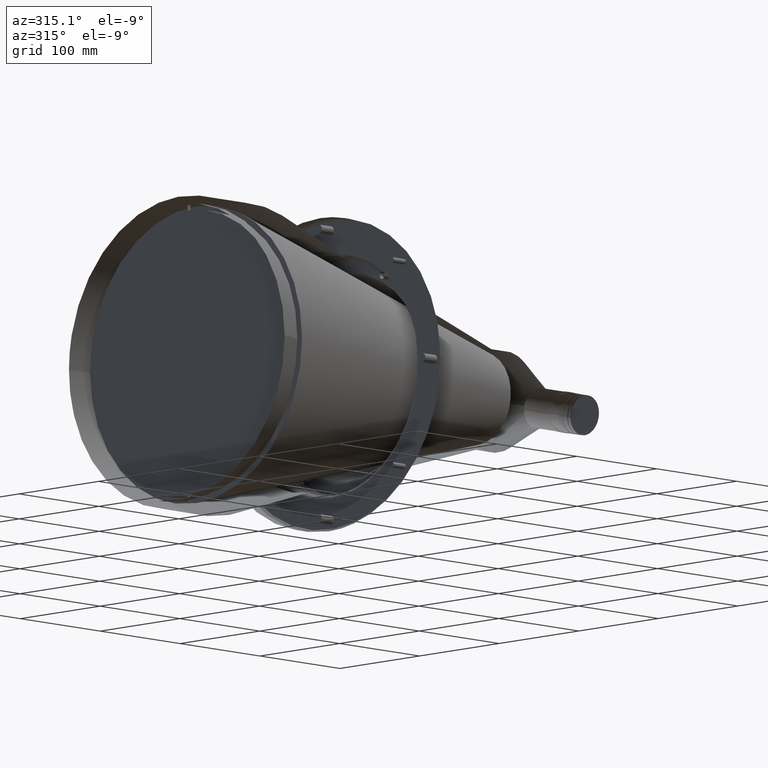
[diagram: clean part render]
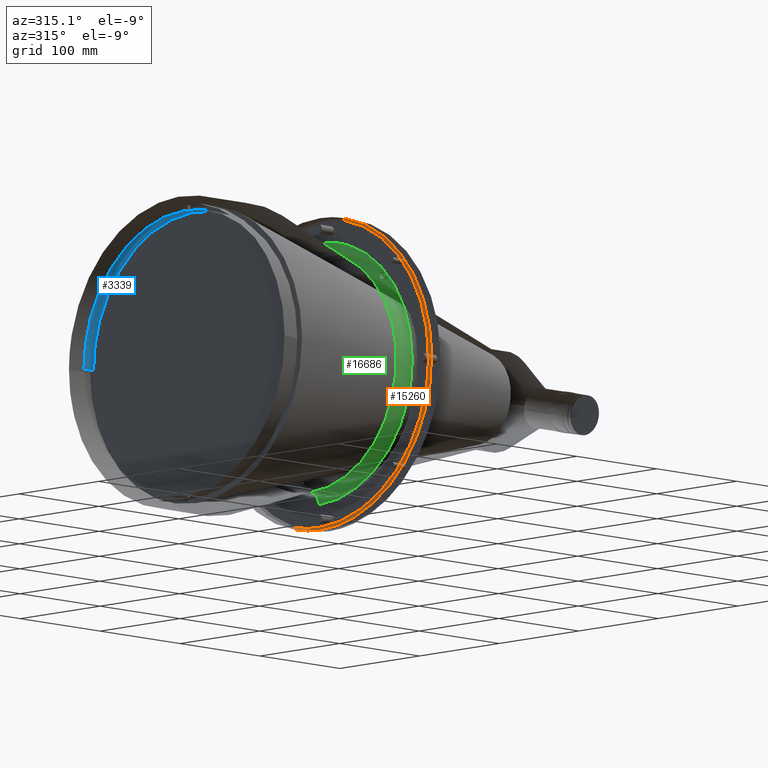
[diagram: same view with three faces highlighted in distinct colors, each labeled with its STEP entity id]
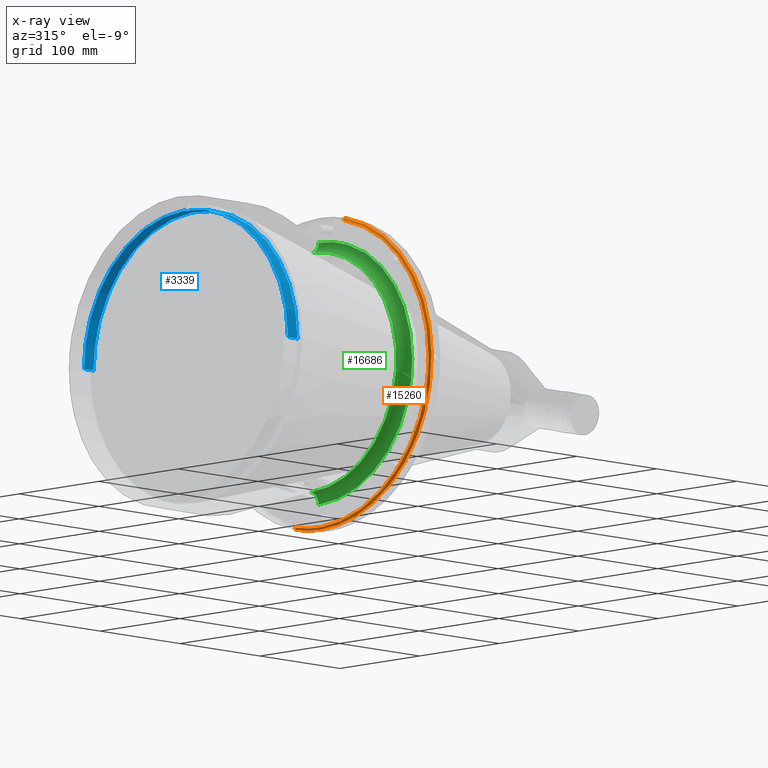
[diagram: x-ray of the same camera — body ghosted, the three highlighted faces saturated]
A machine part, auxiliary view with three faces highlighted in distinct colors.
The next image is the same camera in x-ray (body ghosted, the three faces saturated) — at least one of them is partly hidden behind the body in this view.
Their STEP definitions:

[orange] entity #15260 — the highlighted conical surface has half-angle 45 deg.
#155 = DIRECTION ( 'NONE',  ( 0.7071067811865523467, -0.1552185617239015825, 0.6898602743283284155 ) ) ;
#574 = CARTESIAN_POINT ( 'NONE',  ( 176.9999999985773798, -105.5422824017505263, -92.37626350147742471 ) ) ;
#933 = CARTESIAN_POINT ( 'NONE',  ( 175.1999999999983402, -30.33658536586020560, 134.8292682926823147 ) ) ;
#1077 = CARTESIAN_POINT ( 'NONE',  ( 175.0000000000000000, -34.68578998581706685, 133.5890414530865655 ) ) ;
#1342 = CARTESIAN_POINT ( 'NONE',  ( 175.0000000000000284, -86.72695967427758035, 107.3665313668431622 ) ) ;
#1405 = CARTESIAN_POINT ( 'NONE',  ( 175.0000000000000000, -118.9300396967695121, -70.03384558855223929 ) ) ;
#1555 = ORIENTED_EDGE ( 'NONE', *, *, #21002, .T. ) ;
#1678 = CARTESIAN_POINT ( 'NONE',  ( 175.0000000000000568, -135.1531434675157186, 27.97716443051283264 ) ) ;
#1935 = CARTESIAN_POINT ( 'NONE',  ( 175.0000000000000284, -124.2545224643027808, -60.08271832668319234 ) ) ;
#2198 = CARTESIAN_POINT ( 'NONE',  ( 174.9999999999999716, -137.7956535278856620, 7.841780594234208479 ) ) ;
#2467 = CARTESIAN_POINT ( 'NONE',  ( 174.9999999999999716, -129.5852662489556621, 47.50570839581069293 ) ) ;
#2736 = VERTEX_POINT ( 'NONE', #27915 ) ;
#2739 = CARTESIAN_POINT ( 'NONE',  ( 175.0000000000000284, 7.957994982361006109, -137.7889962146408607 ) ) ;
#3004 = CARTESIAN_POINT ( 'NONE',  ( 174.9999999999999716, -14.59563984394903180, -137.2445585510951105 ) ) ;
#3262 = CARTESIAN_POINT ( 'NONE',  ( 175.0000000000000284, -66.02752586423082448, -121.2632401934216517 ) ) ;
#3804 = CARTESIAN_POINT ( 'NONE',  ( 176.9999999985772945, -140.0843209595759618, -6.995030690366399462 ) ) ;
#5356 = CARTESIAN_POINT ( 'NONE',  ( 175.0000000000000000, -98.42878160586646175, 96.75180227747888750 ) ) ;
#5418 = CARTESIAN_POINT ( 'NONE',  ( 175.0000000000000284, -132.4365249841377761, -39.05123869896025468 ) ) ;
#5689 = CARTESIAN_POINT ( 'NONE',  ( 175.0000000000000000, -130.3448617685398858, 45.37988935237414267 ) ) ;
#5959 = CARTESIAN_POINT ( 'NONE',  ( 175.0000000000000000, -91.80414329581496702, -103.0586879678365619 ) ) ;
#6222 = CARTESIAN_POINT ( 'NONE',  ( 175.0000000000000284, -136.6776320124846791, -19.19242958946788491 ) ) ;
#6487 = CARTESIAN_POINT ( 'NONE',  ( 175.0000000000000284, -115.3501060304176207, -75.78582173944924705 ) ) ;
#6759 = CARTESIAN_POINT ( 'NONE',  ( 175.0000000002444835, 30.29268292693119946, -134.6341463419551872 ) ) ;
#6774 = CARTESIAN_POINT ( 'NONE',  ( 176.9999999978813605, -30.73170731692567159, 136.5853658529730410 ) ) ;
#7024 = CARTESIAN_POINT ( 'NONE',  ( 175.0000000000000568, -69.96650317599696223, -119.0340008574612369 ) ) ;
#7296 = CARTESIAN_POINT ( 'NONE',  ( 175.0000000000000284, -21.31007127201104367, -136.3635478540250006 ) ) ;
#7834 = CARTESIAN_POINT ( 'NONE',  ( 176.9999999985784598, -133.3514522763482262, 43.47341266628139067 ) ) ;
#8099 = CARTESIAN_POINT ( 'NONE',  ( 176.9999999985770955, -120.5560335867597388, -71.68535553997951126 ) ) ;
#8344 = CARTESIAN_POINT ( 'NONE',  ( 174.9999999999999432, -91.88938038546554310, 102.9827125170846216 ) ) ;
#8358 = CARTESIAN_POINT ( 'NONE',  ( 176.9999999985791135, -42.02117620374895779, -133.8161731014541260 ) ) ;
#9453 = CARTESIAN_POINT ( 'NONE',  ( 175.0000000000000000, -135.1300519639137860, -28.08854025644114927 ) ) ;
#9716 = CARTESIAN_POINT ( 'NONE',  ( 175.0000000000000000, -110.1453480196210677, -83.16913768292997133 ) ) ;
#9980 = CARTESIAN_POINT ( 'NONE',  ( 174.9999999999999716, -133.6178032215945279, 34.57484071799687797 ) ) ;
#10080 = DIRECTION ( 'NONE',  ( 1.000000000000000000, -4.717467733218110387E-14, 1.755472366373550087E-15 ) ) ;
#10256 = CARTESIAN_POINT ( 'NONE',  ( 175.0000000000000000, -83.07709152932579855, -110.2148604793703726 ) ) ;
#10291 = ORIENTED_EDGE ( 'NONE', *, *, #10937, .F. ) ;
#10363 = CARTESIAN_POINT ( 'NONE',  ( 176.9999999978786605, -4.100602912047750896E-14, -139.9999999992985806 ) ) ;
#10516 = CARTESIAN_POINT ( 'NONE',  ( 174.9999999999999432, -110.2145197334859006, 83.07750376679751980 ) ) ;
#10784 = CARTESIAN_POINT ( 'NONE',  ( 175.0000000000000284, -57.93706517368222109, -125.2693578877478728 ) ) ;
#10929 = AXIS2_PLACEMENT_3D ( 'NONE', #34239, #10080, #22394 ) ;
#10937 = EDGE_CURVE ( 'NONE', #13481, #27278, #24367, .T. ) ;
#10964 = VECTOR ( 'NONE', #155, 1000.000000000000114 ) ;
#11311 = CARTESIAN_POINT ( 'NONE',  ( 175.0000000000000000, 12.45990211936464220, -137.4549694823449499 ) ) ;
#11844 = CARTESIAN_POINT ( 'NONE',  ( 174.9999999999999716, 5.703593052250713669, -137.9006709487339606 ) ) ;
#11857 = CARTESIAN_POINT ( 'NONE',  ( 176.9999999985770387, -128.3572552661612463, -56.54168774985987511 ) ) ;
#12124 = CARTESIAN_POINT ( 'NONE',  ( 176.9999999985770671, -138.2031247462492729, -23.92579661030162796 ) ) ;
#12168 = CARTESIAN_POINT ( 'NONE',  ( 176.9999999985806198, 10.32800730945719359, -139.9999999985961097 ) ) ;
#12384 = CARTESIAN_POINT ( 'NONE',  ( 176.9999999985793409, -123.2457967703280559, 66.95536581567270673 ) ) ;
#12431 = CARTESIAN_POINT ( 'NONE',  ( 176.9999999981174881, 30.73170731685980073, -136.5853658527496179 ) ) ;
#12890 = CARTESIAN_POINT ( 'NONE',  ( 175.0000000000000000, -64.13849766691994603, 122.2730326940902756 ) ) ;
#12903 = CARTESIAN_POINT ( 'NONE',  ( 176.9999999985801367, -8.517478116036814484, -139.9999999985972465 ) ) ;
#13156 = CARTESIAN_POINT ( 'NONE',  ( 175.0000000000000000, -81.35332333538612204, 111.4931871519532507 ) ) ;
#13213 = CARTESIAN_POINT ( 'NONE',  ( 176.9999999985809325, 20.65560262460315499, -138.8524894080239562 ) ) ;
#13374 = EDGE_CURVE ( 'NONE', #16311, #27278, #19412, .T. ) ;
#13413 = CARTESIAN_POINT ( 'NONE',  ( 175.0000000000000284, -60.10673367532682931, 124.3044880273464372 ) ) ;
#13481 = VERTEX_POINT ( 'NONE', #30899 ) ;
#13746 = CARTESIAN_POINT ( 'NONE',  ( 175.0000000000000000, -118.9877064071567219, 69.93585239331241610 ) ) ;
#14004 = CARTESIAN_POINT ( 'NONE',  ( 174.9999999999999716, -136.3634181774093861, 21.31093270252813809 ) ) ;
#14127 = EDGE_LOOP ( 'NONE', ( #10291, #18811, #25465, #1555, #37490 ) ) ;
#14267 = CARTESIAN_POINT ( 'NONE',  ( 175.0000000000000284, -88.38248027864672451, -106.0078416629634290 ) ) ;
#14538 = CARTESIAN_POINT ( 'NONE',  ( 174.9999999999999716, -131.7604093412704174, 41.08881715574730720 ) ) ;
#14802 = CARTESIAN_POINT ( 'NONE',  ( 175.0000000000000568, -25.75911473813938457, -135.5934065428979807 ) ) ;
#15260 = ADVANCED_FACE ( 'NONE', ( #43065 ), #19502, .F. ) ;
#15859 = CARTESIAN_POINT ( 'NONE',  ( 175.0000000000000284, -7.840950587516814174, -137.7956885033769083 ) ) ;
#15873 = CARTESIAN_POINT ( 'NONE',  ( 176.9999999985774934, -140.2502244312723292, 1.556271198181471638 ) ) ;
#16142 = CARTESIAN_POINT ( 'NONE',  ( 176.9999999985796535, -118.9356476712815152, 74.34284865456940850 ) ) ;
#16311 = VERTEX_POINT ( 'NONE', #10363 ) ;
#16577 = EDGE_CURVE ( 'NONE', #2736, #19989, #37425, .T. ) ;
#16916 = CARTESIAN_POINT ( 'NONE',  ( 175.0000000004740457, -30.29268542276235365, 134.6341574368697707 ) ) ;
#17760 = CARTESIAN_POINT ( 'NONE',  ( 175.0000000000000853, -137.9007204772758826, -5.702840215696395987 ) ) ;
#18027 = CARTESIAN_POINT ( 'NONE',  ( 175.0000000000000000, -136.6936515119118667, 19.07819030028146656 ) ) ;
#18291 = CARTESIAN_POINT ( 'NONE',  ( 174.9999999999999716, -117.8269452195462890, 71.87441365600540166 ) ) ;
#18555 = CARTESIAN_POINT ( 'NONE',  ( 175.0000000000000000, -96.75118481584242147, -98.42939556940797274 ) ) ;
#18811 = ORIENTED_EDGE ( 'NONE', *, *, #27539, .F. ) ;
#18829 = CARTESIAN_POINT ( 'NONE',  ( 175.0000000000000000, -114.0953638546203308, -77.66195343300606169 ) ) ;
#19095 = CARTESIAN_POINT ( 'NONE',  ( 175.0000000000000284, -53.80512223774264413, -127.0988063803668808 ) ) ;
#19359 = CARTESIAN_POINT ( 'NONE',  ( 175.0000000000000000, -51.71727792263110501, -127.9626647863252344 ) ) ;
#19374 = CARTESIAN_POINT ( 'NONE',  ( 176.9999999985846273, -47.17992577719568459, 132.0855860293634123 ) ) ;
#19412 = B_SPLINE_CURVE_WITH_KNOTS ( 'NONE', 3,
 ( #24481, #12168, #13213, #12431 ),
 .UNSPECIFIED., .F., .F.,
 ( 4, 4 ),
 ( 0.9341895461176755733, 1.000000000000000000 ),
 .UNSPECIFIED. ) ;
#19502 = CONICAL_SURFACE ( 'NONE', #10929, 138.2000000000080320, 0.7853981633974291832 ) ;
#19893 = CARTESIAN_POINT ( 'NONE',  ( 176.9999999985775503, -99.71561631609338860, -98.63743354207318248 ) ) ;
#19989 = VERTEX_POINT ( 'NONE', #38998 ) ;
#20161 = CARTESIAN_POINT ( 'NONE',  ( 176.9999999978786605, -4.100602912047750896E-14, -139.9999999992985806 ) ) ;
#20425 = CARTESIAN_POINT ( 'NONE',  ( 176.9999999985793409, -33.78680266340561644, -136.1286134464346276 ) ) ;
#20690 = CARTESIAN_POINT ( 'NONE',  ( 176.9999999985808188, -103.4664610750874374, 94.69550604786083170 ) ) ;
#21002 = EDGE_CURVE ( 'NONE', #19989, #16311, #37854, .T. ) ;
#21178 = VECTOR ( 'NONE', #32701, 1000.000000000000114 ) ;
#21709 = CARTESIAN_POINT ( 'NONE',  ( 174.9999999999999432, -101.5407917957607680, 93.48032654182732415 ) ) ;
#21772 = CARTESIAN_POINT ( 'NONE',  ( 175.0000000000000000, -136.3455272667738427, -21.42507635793931442 ) ) ;
#22041 = CARTESIAN_POINT ( 'NONE',  ( 175.0000000000000000, -115.4134870410252915, 75.68925594696621317 ) ) ;
#22302 = CARTESIAN_POINT ( 'NONE',  ( 175.0000000000000000, -135.5933614834128207, 25.75947514672481020 ) ) ;
#22394 = DIRECTION ( 'NONE',  ( -1.205017754658204019E-14, -0.2195121951219439205, 0.9756097560975626193 ) ) ;
#22563 = CARTESIAN_POINT ( 'NONE',  ( 175.0000000000000284, -77.56604888982167267, -114.1605249792816892 ) ) ;
#22821 = CARTESIAN_POINT ( 'NONE',  ( 175.0000000000000284, -106.0073791972151440, 88.38306445649986642 ) ) ;
#23361 = CARTESIAN_POINT ( 'NONE',  ( 175.0000000000000284, -47.50491937958148725, -129.5855666475601424 ) ) ;
#24173 = CARTESIAN_POINT ( 'NONE',  ( 176.9999999985798809, -17.03479894690865137, -139.2205554431633345 ) ) ;
#24367 = LINE ( 'NONE', #44225, #21178 ) ;
#24436 = CARTESIAN_POINT ( 'NONE',  ( 176.9999999985770387, -131.5648865487716819, -48.61304413913924805 ) ) ;
#24481 = CARTESIAN_POINT ( 'NONE',  ( 176.9999999978786605, -4.100602912047750896E-14, -139.9999999992985806 ) ) ;
#24701 = CARTESIAN_POINT ( 'NONE',  ( 176.9999999985831209, -70.37055136739662942, 121.3282033713142027 ) ) ;
#24948 = CARTESIAN_POINT ( 'NONE',  ( 175.0000000000000284, -32.49640207392742752, 134.1383864799402943 ) ) ;
#25465 = ORIENTED_EDGE ( 'NONE', *, *, #16577, .T. ) ;
#25731 = CARTESIAN_POINT ( 'NONE',  ( 175.0000000000000000, -93.56444735699534476, 101.4632731377066079 ) ) ;
#25796 = CARTESIAN_POINT ( 'NONE',  ( 174.9999999999999716, -121.2134300960887714, 66.00318147826048687 ) ) ;
#26064 = CARTESIAN_POINT ( 'NONE',  ( 175.0000000000000000, -135.5718758213986348, -25.87249600725646559 ) ) ;
#26331 = CARTESIAN_POINT ( 'NONE',  ( 175.0000000000000568, -137.7890488130226743, -7.957119610584022951 ) ) ;
#26598 = CARTESIAN_POINT ( 'NONE',  ( 175.0000000000000000, -81.26137625105462803, -111.5602304230058905 ) ) ;
#26862 = CARTESIAN_POINT ( 'NONE',  ( 175.0000000000000000, -137.9054610532155323, 5.587469693612548305 ) ) ;
#27130 = CARTESIAN_POINT ( 'NONE',  ( 175.0000000000000568, 21.43533023274674321, -136.4000362214959523 ) ) ;
#27278 = VERTEX_POINT ( 'NONE', #31104 ) ;
#27539 = EDGE_CURVE ( 'NONE', #2736, #13481, #45860, .T. ) ;
#27915 = CARTESIAN_POINT ( 'NONE',  ( 175.0000000004740457, -30.29268542276235365, 134.6341574368697707 ) ) ;
#27930 = CARTESIAN_POINT ( 'NONE',  ( 175.0000000000000000, -12.34489600501786555, -137.4652714832129448 ) ) ;
#28205 = CARTESIAN_POINT ( 'NONE',  ( 176.9999999985770955, -136.4878667431004544, -32.30494799535473760 ) ) ;
#28721 = CARTESIAN_POINT ( 'NONE',  ( 176.9999999985786303, -57.93372211895452040, -127.7350041081487007 ) ) ;
#29241 = CARTESIAN_POINT ( 'NONE',  ( 175.0000000000000284, -71.97215786969924523, 117.7672549590242426 ) ) ;
#29767 = CARTESIAN_POINT ( 'NONE',  ( 175.0000000000000000, -70.03417846958849680, 118.9298519346373126 ) ) ;
#29831 = CARTESIAN_POINT ( 'NONE',  ( 175.0000000000000284, -125.2214489725000135, -58.04037980527369456 ) ) ;
#30094 = CARTESIAN_POINT ( 'NONE',  ( 175.0000000000000000, -117.7669625366985713, -71.97259029630878047 ) ) ;
#30365 = CARTESIAN_POINT ( 'NONE',  ( 175.0000000000000000, -127.9708224211281191, -51.84504469483748323 ) ) ;
#30635 = CARTESIAN_POINT ( 'NONE',  ( 175.0000000000000000, -107.4385285502554268, 86.63775348875645932 ) ) ;
#30899 = CARTESIAN_POINT ( 'NONE',  ( 175.0000000002444835, 30.29268292693119946, -134.6341463419551872 ) ) ;
#30904 = CARTESIAN_POINT ( 'NONE',  ( 175.0000000000000284, -137.4652758448787040, 12.34504922652144288 ) ) ;
#31104 = CARTESIAN_POINT ( 'NONE',  ( 176.9999999981174881, 30.73170731685980073, -136.5853658527496179 ) ) ;
#31970 = CARTESIAN_POINT ( 'NONE',  ( 175.0000000000000284, 1.187892468812692837, -138.0133431528103642 ) ) ;
#32231 = CARTESIAN_POINT ( 'NONE',  ( 175.0000000000000568, -27.97728754963764430, -135.1531250424667689 ) ) ;
#32515 = CARTESIAN_POINT ( 'NONE',  ( 176.9999999985787724, -130.4537656246361621, 51.52050531018046087 ) ) ;
#32701 = DIRECTION ( 'NONE',  ( 0.7071067811865694441, 0.1552185617238347193, -0.6898602743283259731 ) ) ;
#33289 = CARTESIAN_POINT ( 'NONE',  ( 174.9999999999999716, -39.03591332350956122, 132.3832254482597932 ) ) ;
#34139 = CARTESIAN_POINT ( 'NONE',  ( 175.0000000000000000, -122.2768243759639972, 64.01180177307884378 ) ) ;
#34239 = CARTESIAN_POINT ( 'NONE',  ( 175.1999999999999886, -5.795364188543320372E-12, -8.668621376273222268E-12 ) ) ;
#34398 = CARTESIAN_POINT ( 'NONE',  ( 174.9999999999999716, -125.3186045218170932, 57.96252991456680093 ) ) ;
#34663 = CARTESIAN_POINT ( 'NONE',  ( 175.0000000000000284, -133.6422916647011618, -34.70126588169753745 ) ) ;
#34926 = CARTESIAN_POINT ( 'NONE',  ( 175.0000000000000284, -114.1601903771862396, 77.56658198845666163 ) ) ;
#35207 = CARTESIAN_POINT ( 'NONE',  ( 175.0000000000000000, -105.9334369002399256, -88.47170501077799543 ) ) ;
#36249 = CARTESIAN_POINT ( 'NONE',  ( 175.0000000000000284, -34.57399373279377386, -133.6180254109083592 ) ) ;
#36263 = CARTESIAN_POINT ( 'NONE',  ( 176.9999999985835757, -62.84462506230129009, 125.3917881435664157 ) ) ;
#37064 = CARTESIAN_POINT ( 'NONE',  ( 176.9999999985777777, -139.0271429073932552, 18.54726308843384786 ) ) ;
#37425 = LINE ( 'NONE', #933, #10964 ) ;
#37490 = ORIENTED_EDGE ( 'NONE', *, *, #13374, .T. ) ;
#37573 = CARTESIAN_POINT ( 'NONE',  ( 175.0000000000000284, -41.19771262602261430, 131.7264088099564106 ) ) ;
#37854 = B_SPLINE_CURVE_WITH_KNOTS ( 'NONE', 3,
 ( #6774, #39474, #19374, #36263, #24701, #44570, #45619, #20690, #44831, #16142, #12384, #32515, #7834, #48889, #37064, #15873, #3804, #12124, #28205, #24436, #11857, #8099, #40270, #574, #19893, #49404, #45090, #41069, #28721, #8358, #20425, #24173, #12903, #20161 ),
 .UNSPECIFIED., .F., .F.,
 ( 4, 2, 2, 2, 2, 2, 2, 2, 2, 2, 2, 2, 2, 2, 2, 2, 4 ),
 ( 0.06581045388234851856, 0.1200841471470564525, 0.1743578404117643865, 0.2286315336764722927, 0.2829052269411802545, 0.3371789202058881885, 0.3914526134705960669, 0.4457263067353040009, 0.5000000000000119904, 0.5542736932647198689, 0.6085473865294278584, 0.6628210797941357368, 0.7170947730588436153, 0.7713684663235516048, 0.8256421595882594833, 0.8799158528529675838, 0.9341895461176755733 ),
 .UNSPECIFIED. ) ;
#38083 = CARTESIAN_POINT ( 'NONE',  ( 175.0000000000000000, -103.0587729682846430, 91.80405860551439901 ) ) ;
#38145 = CARTESIAN_POINT ( 'NONE',  ( 175.0000000000000284, -122.2232378827026906, -64.11409078653289839 ) ) ;
#38413 = CARTESIAN_POINT ( 'NONE',  ( 174.9999999999999716, -127.1510144905463591, 53.82401436148975193 ) ) ;
#38668 = CARTESIAN_POINT ( 'NONE',  ( 175.0000000000000000, -86.63706992534893914, -107.4390761652701798 ) ) ;
#38930 = CARTESIAN_POINT ( 'NONE',  ( 175.0000000000000000, -75.68854363901101578, -115.4139417953664548 ) ) ;
#38998 = CARTESIAN_POINT ( 'NONE',  ( 176.9999999978813605, -30.73170731692567159, 136.5853658529730410 ) ) ;
#39193 = CARTESIAN_POINT ( 'NONE',  ( 175.0000000000000568, -129.5971386608340481, -47.63416246766911399 ) ) ;
#39474 = CARTESIAN_POINT ( 'NONE',  ( 176.9999999985851389, -39.04144206412301088, 134.7156755341251539 ) ) ;
#39728 = CARTESIAN_POINT ( 'NONE',  ( 175.0000000000000853, 14.70884914374548025, -137.2324510356646670 ) ) ;
#40256 = CARTESIAN_POINT ( 'NONE',  ( 175.0000000000000284, -5.586602330999018484, -137.9055019580286796 ) ) ;
#40270 = CARTESIAN_POINT ( 'NONE',  ( 176.9999999985772092, -115.9625872486233078, -78.90010007389508928 ) ) ;
#40517 = CARTESIAN_POINT ( 'NONE',  ( 175.0000000000000000, -45.37930499198225220, -130.3450894388224697 ) ) ;
#41069 = CARTESIAN_POINT ( 'NONE',  ( 176.9999999985784314, -65.61160065010207632, -123.9663877557001399 ) ) ;
#41578 = CARTESIAN_POINT ( 'NONE',  ( 174.9999999999999432, -83.16887723218280826, 110.1455731269520157 ) ) ;
#42108 = CARTESIAN_POINT ( 'NONE',  ( 175.0000000000000284, -96.83351271811339700, 98.34839159665472152 ) ) ;
#42168 = CARTESIAN_POINT ( 'NONE',  ( 175.0000000000000568, -137.2323995499527030, -14.70926216489931981 ) ) ;
#42439 = CARTESIAN_POINT ( 'NONE',  ( 175.0000000000000568, -102.9826271155398558, -91.88950301490204708 ) ) ;
#42703 = CARTESIAN_POINT ( 'NONE',  ( 175.0000000000000000, -107.3659810810561481, -86.72763194438356038 ) ) ;
#42967 = CARTESIAN_POINT ( 'NONE',  ( 175.0000000000000000, -137.2445281559253942, 14.59576313549157334 ) ) ;
#43065 = FACE_OUTER_BOUND ( 'NONE', #14127, .T. ) ;
#43232 = CARTESIAN_POINT ( 'NONE',  ( 175.0000000000000284, -138.0133507125801771, -1.187986336881420524 ) ) ;
#43762 = CARTESIAN_POINT ( 'NONE',  ( 175.0000000000000284, -41.08920598463454610, -131.7602787426368423 ) ) ;
#44225 = CARTESIAN_POINT ( 'NONE',  ( 175.2000000000016655, 30.33658536584860244, -134.8292682926996520 ) ) ;
#44286 = CARTESIAN_POINT ( 'NONE',  ( 175.0000000000000000, 25.88255470615999698, -135.6264251919142794 ) ) ;
#44570 = CARTESIAN_POINT ( 'NONE',  ( 176.9999999985820693, -84.56009565199344991, 111.9023576891405014 ) ) ;
#44831 = CARTESIAN_POINT ( 'NONE',  ( 176.9999999985803925, -109.0458885106939562, 88.21304683535458935 ) ) ;
#45078 = CARTESIAN_POINT ( 'NONE',  ( 175.0000000000000000, -51.84396876671928567, 127.9712344812958520 ) ) ;
#45090 = CARTESIAN_POINT ( 'NONE',  ( 176.9999999985780335, -80.15607045298573041, -115.0980095509960250 ) ) ;
#45605 = CARTESIAN_POINT ( 'NONE',  ( 175.0000000000000853, -75.78508776793148627, 115.3505856582828812 ) ) ;
#45619 = CARTESIAN_POINT ( 'NONE',  ( 176.9999999985816714, -91.22345160501446060, 106.5402708384502830 ) ) ;
#45860 = B_SPLINE_CURVE_WITH_KNOTS ( 'NONE', 3,
 ( #16916, #24948, #1077, #33289, #37573, #49664, #45078, #13413, #12890, #29767, #29241, #45605, #49922, #13156, #41578, #1342, #45866, #8344, #25731, #42108, #5356, #21709, #38083, #22821, #30635, #10516, #46200, #34926, #22041, #18291, #13746, #25796, #34139, #34398, #38413, #2467, #5689, #14538, #51304, #9980, #47266, #1678, #22302, #14004, #18027, #42967, #30904, #2198, #26862, #47000, #43232, #17760, #26331, #50770, #42168, #6222, #21772, #26064, #9453, #34663, #5418, #39193, #30365, #29831, #1935, #38145, #50515, #1405, #30094, #6487, #18829, #46464, #9716, #42703, #35207, #42439, #51033, #51572, #18555, #46727, #5959, #14267, #38668, #10256, #26598, #22563, #38930, #7024, #3262, #51837, #10784, #19095, #19359, #23361, #40517, #43762, #52626, #36249, #48077, #32231, #14802, #7296, #52104, #3004, #27930, #15859, #40256, #48607, #31970, #11844, #2739, #11311, #39728, #27130, #44286, #6759 ),
 .UNSPECIFIED., .F., .F.,
 ( 4, 2, 2, 2, 2, 2, 2, 2, 2, 2, 2, 2, 2, 2, 2, 2, 2, 2, 2, 2, 2, 2, 2, 2, 2, 2, 2, 2, 2, 2, 2, 2, 2, 2, 2, 2, 2, 2, 2, 2, 2, 2, 2, 2, 2, 2, 2, 2, 2, 2, 2, 2, 2, 2, 2, 2, 2, 4 ),
 ( 0.06580851905960719006, 0.08040526094930078305, 0.09500200283899438991, 0.1241954866183816453, 0.1533889703977688868, 0.1679857122874625075, 0.1825824541771561282, 0.1971791960668497490, 0.2117759379565433975, 0.2263726798462369905, 0.2409694217359306390, 0.2555661636256242319, 0.2701629055153178527, 0.2847596474050114734, 0.2993563892947051497, 0.3139531311843987704, 0.3285498730740924467, 0.3577433568534796882, 0.3723400987431733089, 0.3869368406328669296, 0.4015335825225606614, 0.4161303244122542822, 0.4307270663019477919, 0.4453238081916414126, 0.4599205500813350334, 0.4745172919710286541, 0.4891140338607222748, 0.5037107757504157846, 0.5183075176401094053, 0.5329042595298031371, 0.5620977433091902675, 0.5912912270885773980, 0.6058879689782711297, 0.6204847108679647505, 0.6350814527576583712, 0.6496781946473519920, 0.6642749365370456127, 0.6788716784267391224, 0.6934684203164327432, 0.7080651622061262529, 0.7226619040958199847, 0.7372586459855136054, 0.7518553878752071151, 0.7664521297649007359, 0.7956456135442879773, 0.8102423554339818201, 0.8248390973236754409, 0.8394358392133691726, 0.8540325811030629044, 0.8686293229927565251, 0.8832260648824502569, 0.8978228067721439887, 0.9124195486618376094, 0.9270162905515313412, 0.9416130324412250729, 0.9562097743309188047, 0.9708065162206125365, 1.000000000000000000 ),
 .UNSPECIFIED. ) ;
#45866 = CARTESIAN_POINT ( 'NONE',  ( 175.0000000000000000, -88.47106030493412732, 105.9339592448696976 ) ) ;
#46200 = CARTESIAN_POINT ( 'NONE',  ( 175.0000000000000000, -111.5604619003510720, 81.26104386345768660 ) ) ;
#46464 = CARTESIAN_POINT ( 'NONE',  ( 175.0000000000000284, -111.4932516577122499, -81.35324876409310946 ) ) ;
#46727 = CARTESIAN_POINT ( 'NONE',  ( 175.0000000000000284, -93.48007779314282573, -101.5410519837664651 ) ) ;
#47000 = CARTESIAN_POINT ( 'NONE',  ( 175.0000000000000853, -138.0143134715276858, 1.073494723413024987 ) ) ;
#47266 = CARTESIAN_POINT ( 'NONE',  ( 174.9999999999999432, -134.1653193733598073, 32.38506349260274675 ) ) ;
#48077 = CARTESIAN_POINT ( 'NONE',  ( 174.9999999999999716, -32.38434551229132552, -134.1655121874513839 ) ) ;
#48607 = CARTESIAN_POINT ( 'NONE',  ( 175.0000000000000284, -1.073154722428750096, -138.0143387564717443 ) ) ;
#48889 = CARTESIAN_POINT ( 'NONE',  ( 176.9999999985779482, -137.6381804974442105, 26.98663933166140083 ) ) ;
#49404 = CARTESIAN_POINT ( 'NONE',  ( 176.9999999985778913, -87.02239314412786086, -109.9984114636846755 ) ) ;
#49664 = CARTESIAN_POINT ( 'NONE',  ( 175.0000000000000000, -47.63313631118121805, 129.5975430235765771 ) ) ;
#49922 = CARTESIAN_POINT ( 'NONE',  ( 175.0000000000000000, -77.66132086106881616, 114.0957720968686573 ) ) ;
#50515 = CARTESIAN_POINT ( 'NONE',  ( 175.0000000000000284, -121.1583413291960767, -66.10431623890671915 ) ) ;
#50770 = CARTESIAN_POINT ( 'NONE',  ( 175.0000000000000853, -137.4549923913138230, -12.45938331131948651 ) ) ;
#51033 = CARTESIAN_POINT ( 'NONE',  ( 175.0000000000000000, -101.4631724564731741, -93.56453098581906147 ) ) ;
#51304 = CARTESIAN_POINT ( 'NONE',  ( 175.0000000000000000, -132.4155627086890945, 38.92605055748367704 ) ) ;
#51572 = CARTESIAN_POINT ( 'NONE',  ( 175.0000000000000000, -98.34780374850849682, -96.83409136981842380 ) ) ;
#51837 = CARTESIAN_POINT ( 'NONE',  ( 175.0000000000000000, -59.97826161574762693, -124.3050306829972271 ) ) ;
#52104 = CARTESIAN_POINT ( 'NONE',  ( 175.0000000000000000, -19.07737629317302108, -136.6937782556643128 ) ) ;
#52626 = CARTESIAN_POINT ( 'NONE',  ( 175.0000000000000000, -38.92552865214990732, -132.4156911597516455 ) ) ;

[blue] entity #3339 — the highlighted cylindrical surface (partial cylindrical patch) has radius 128.1 mm, axis along (1, 0, 0).
#67 = CARTESIAN_POINT ( 'NONE',  ( 8.836156110228545302, 128.0999999999999943, 2.105175697687082743E-10 ) ) ;
#776 = CARTESIAN_POINT ( 'NONE',  ( 20.83615611460899686, -111.1692278349151195, 64.19740135874326370 ) ) ;
#948 = ORIENTED_EDGE ( 'NONE', *, *, #26170, .F. ) ;
#1033 = CARTESIAN_POINT ( 'NONE',  ( 20.83615611404784929, -128.1000000002813977, -2.650342543544264821E-13 ) ) ;
#1558 = CARTESIAN_POINT ( 'NONE',  ( 20.83615611460899686, 96.50885059060186677, 84.65190674939192661 ) ) ;
#1585 = VERTEX_POINT ( 'NONE', #34564 ) ;
#2904 = CARTESIAN_POINT ( 'NONE',  ( 8.836156112999999479, -30.76720231171728770, 124.4195936052947786 ) ) ;
#2982 = ORIENTED_EDGE ( 'NONE', *, *, #37470, .T. ) ;
#3339 = ADVANCED_FACE ( 'NONE', ( #46193 ), #14530, .T. ) ;
#3556 = CARTESIAN_POINT ( 'NONE',  ( 8.836156112999999479, 68.77382407351625204, 108.1527490787626533 ) ) ;
#3703 = CARTESIAN_POINT ( 'NONE',  ( 8.836156112999999479, -127.0923107542389374, 16.56529933282024203 ) ) ;
#4085 = CARTESIAN_POINT ( 'NONE',  ( 8.836156112999997703, 127.8984355948464895, 8.297860567058103598 ) ) ;
#4793 = CARTESIAN_POINT ( 'NONE',  ( 20.83615611460900041, -96.50885059060207993, 84.65190674939167081 ) ) ;
#5014 = CARTESIAN_POINT ( 'NONE',  ( 10.16948944303856983, 2.000000000000000000, 128.0843862445535706 ) ) ;
#5059 = CARTESIAN_POINT ( 'NONE',  ( 20.83615611460900396, -127.2742561426451431, 16.76804347451300004 ) ) ;
#5574 = CARTESIAN_POINT ( 'NONE',  ( 20.83615611460899686, 111.1692278349149916, 64.19740135874344844 ) ) ;
#6351 = B_SPLINE_CURVE_WITH_KNOTS ( 'NONE', 3,
 ( #49832, #33975, #5014, #29412 ),
 .UNSPECIFIED., .F., .F.,
 ( 4, 4 ),
 ( 0.000000000000000000, 1.000000000000000000 ),
 .UNSPECIFIED. ) ;
#7333 = CARTESIAN_POINT ( 'NONE',  ( 14.83675611299999986, -128.0999999999999943, 6.196490508931637629E-13 ) ) ;
#7355 = VERTEX_POINT ( 'NONE', #39003 ) ;
#7463 = CARTESIAN_POINT ( 'NONE',  ( 8.836156112999999479, -121.4984113891988926, 40.80441748054961693 ) ) ;
#7727 = CARTESIAN_POINT ( 'NONE',  ( 8.836156112999999479, -54.22252757311628102, 116.1325687072686037 ) ) ;
#7847 = CARTESIAN_POINT ( 'NONE',  ( 8.836156113000001255, 121.4983691999462252, 40.80443962035504057 ) ) ;
#8000 = CARTESIAN_POINT ( 'NONE',  ( 8.836156113000003032, -6.153325799129179430, 128.0195332857813924 ) ) ;
#8027 = VERTEX_POINT ( 'NONE', #16662 ) ;
#8113 = CARTESIAN_POINT ( 'NONE',  ( 8.836156113000001255, 126.4894686390297665, 20.67071941346537045 ) ) ;
#8289 = VERTEX_POINT ( 'NONE', #52839 ) ;
#8551 = CARTESIAN_POINT ( 'NONE',  ( 8.836156109723740215, -2.000000000026049829, 128.0843862455024293 ) ) ;
#8635 = B_SPLINE_CURVE_WITH_KNOTS ( 'NONE', 3,
 ( #23801, #36437, #40697, #3703, #12018, #48251, #23264, #7463, #19792, #36697, #40168, #36163, #52540, #47982, #32141, #31614, #11487, #39630, #28100, #27836, #48512, #44461, #28367, #27571, #7727, #24066, #32670, #40431, #2904, #53069, #48787, #20319, #8000, #24336 ),
 .UNSPECIFIED., .F., .F.,
 ( 4, 2, 2, 2, 2, 2, 2, 2, 2, 2, 2, 2, 2, 2, 2, 2, 4 ),
 ( 0.000000000000000000, 0.06249999999999997224, 0.1249999999999999167, 0.1874999999999998612, 0.2499999999999998057, 0.3124999999999997780, 0.3749999999999997780, 0.4374999999999997780, 0.4999999999999997780, 0.5624999999999997780, 0.6249999999999997780, 0.6874999999999996669, 0.7499999999999997780, 0.8124999999999998890, 0.8749999999999998890, 0.9374999999999998890, 1.000000000000000000 ),
 .UNSPECIFIED. ) ;
#8656 = ORIENTED_EDGE ( 'NONE', *, *, #16114, .F. ) ;
#8824 = CARTESIAN_POINT ( 'NONE',  ( 20.83615611460900396, -121.5574339979536944, 41.27582583619572887 ) ) ;
#9067 = CARTESIAN_POINT ( 'NONE',  ( 11.50282277789912477, -2.000000000022679636, 128.0843862459432501 ) ) ;
#9086 = CARTESIAN_POINT ( 'NONE',  ( 20.83615611460900041, -8.384125394267920584, 128.1000000000003070 ) ) ;
#9343 = CARTESIAN_POINT ( 'NONE',  ( 20.83615611460900752, -78.13969234087907978, 101.8532868369972562 ) ) ;
#9604 = CARTESIAN_POINT ( 'NONE',  ( 20.83615611460899686, -115.1405022314383189, 56.76766953573999785 ) ) ;
#9872 = CARTESIAN_POINT ( 'NONE',  ( 20.83615611460900041, 16.76804347451317412, 127.2742561426454273 ) ) ;
#11340 = CARTESIAN_POINT ( 'NONE',  ( 8.836156113000001255, 42.69640592727932216, 120.8465193479974857 ) ) ;
#11487 = CARTESIAN_POINT ( 'NONE',  ( 8.836156112999999479, -94.19854332075966852, 86.91081494864205581 ) ) ;
#11632 = EDGE_CURVE ( 'NONE', #42229, #33493, #8635, .T. ) ;
#11870 = CARTESIAN_POINT ( 'NONE',  ( 8.836156112999999479, 116.9649792438812170, 52.40276368159604203 ) ) ;
#12018 = CARTESIAN_POINT ( 'NONE',  ( 8.836156112999999479, -126.4894335994975165, 20.67072954385263728 ) ) ;
#12136 = CARTESIAN_POINT ( 'NONE',  ( 8.836156113000001255, 75.63521805767976502, 103.4706630257350071 ) ) ;
#12505 = ORIENTED_EDGE ( 'NONE', *, *, #21538, .T. ) ;
#12872 = EDGE_LOOP ( 'NONE', ( #15485, #2982, #12505, #8656, #51536, #948, #53079, #21201 ) ) ;
#13107 = CARTESIAN_POINT ( 'NONE',  ( 20.83615611460900752, 56.76766953574011865, 115.1405022314384183 ) ) ;
#13632 = CARTESIAN_POINT ( 'NONE',  ( 20.83615611460900041, -41.27582583619611256, 121.5574339979537513 ) ) ;
#14530 = CYLINDRICAL_SURFACE ( 'NONE', #22922, 128.0999999999999943 ) ;
#15485 = ORIENTED_EDGE ( 'NONE', *, *, #11632, .F. ) ;
#15887 = CARTESIAN_POINT ( 'NONE',  ( 8.836156112999999479, 111.3274169231469557, 63.50639536428374754 ) ) ;
#16114 = EDGE_CURVE ( 'NONE', #49774, #1585, #40964, .T. ) ;
#16662 = CARTESIAN_POINT ( 'NONE',  ( 12.83615611280079882, -2.000000000167255099, 128.0843862455087958 ) ) ;
#16867 = CARTESIAN_POINT ( 'NONE',  ( 20.83615611460900396, -33.21409702601899028, 124.0029326966628105 ) ) ;
#17132 = CARTESIAN_POINT ( 'NONE',  ( 20.83615611460900041, -56.76766953574034602, 115.1405022314383331 ) ) ;
#18055 = CARTESIAN_POINT ( 'NONE',  ( 12.83615611280079882, 2.000000000167240000, 128.0843862455087958 ) ) ;
#18934 = EDGE_CURVE ( 'NONE', #32171, #49774, #51576, .T. ) ;
#19792 = CARTESIAN_POINT ( 'NONE',  ( 8.836156112999999479, -120.1138076676095636, 44.71608800355235758 ) ) ;
#19907 = CARTESIAN_POINT ( 'NONE',  ( 8.836156109723750873, 2.000000000026080027, 128.0843862455027988 ) ) ;
#20319 = CARTESIAN_POINT ( 'NONE',  ( 8.836156113000001255, -10.29353617394190223, 127.7533123587514012 ) ) ;
#20704 = CARTESIAN_POINT ( 'NONE',  ( 8.836156112999997703, 18.54756371821646965, 126.8181855956247688 ) ) ;
#21145 = CARTESIAN_POINT ( 'NONE',  ( 20.83615611460900041, -64.19740135874356213, 111.1692278349150769 ) ) ;
#21201 = ORIENTED_EDGE ( 'NONE', *, *, #42167, .T. ) ;
#21408 = CARTESIAN_POINT ( 'NONE',  ( 20.83615611460900041, 121.5574339979536376, 41.27582583619600598 ) ) ;
#21538 = EDGE_CURVE ( 'NONE', #8289, #1585, #25676, .T. ) ;
#21666 = CARTESIAN_POINT ( 'NONE',  ( 20.83615611460900396, 84.65190674939172766, 96.50885059060209414 ) ) ;
#22190 = CARTESIAN_POINT ( 'NONE',  ( 20.83615611460899686, -101.8532868369973130, 78.13969234087878135 ) ) ;
#22922 = AXIS2_PLACEMENT_3D ( 'NONE', #30896, #47259, #50764 ) ;
#23264 = CARTESIAN_POINT ( 'NONE',  ( 8.836156112999999479, -123.8863740783143470, 32.84846475132334120 ) ) ;
#23801 = CARTESIAN_POINT ( 'NONE',  ( 8.836156108947280430, -128.0999999999999943, 2.234732746561324803E-13 ) ) ;
#24066 = CARTESIAN_POINT ( 'NONE',  ( 8.836156112999999479, -46.58593358963613440, 119.4010682917752462 ) ) ;
#24186 = CARTESIAN_POINT ( 'NONE',  ( 8.836156113000001255, 104.6389019316836624, 74.01051420925163882 ) ) ;
#24336 = CARTESIAN_POINT ( 'NONE',  ( 8.836156109723740215, -2.000000000026049829, 128.0843862455024293 ) ) ;
#24602 = DIRECTION ( 'NONE',  ( 1.000000000000000000, 0.000000000000000000, 0.000000000000000000 ) ) ;
#25415 = CARTESIAN_POINT ( 'NONE',  ( 20.83615611460900396, 64.19740135874333475, 111.1692278349152758 ) ) ;
#25562 = B_SPLINE_CURVE_WITH_KNOTS ( 'NONE', 3,
 ( #30932, #30122, #33901, #18055 ),
 .UNSPECIFIED., .F., .F.,
 ( 4, 4 ),
 ( 0.000000000000000000, 1.000000000000000000 ),
 .UNSPECIFIED. ) ;
#25676 = B_SPLINE_CURVE_WITH_KNOTS ( 'NONE', 3,
 ( #1033, #50394, #5059, #41531, #8824, #9604, #776, #22190, #4793, #46083, #9343, #21145, #17132, #13632, #16867, #33240, #9086, #25948, #9872, #33510, #49878, #13107, #25415, #29458, #21666, #1558, #45817, #5574, #26216, #21408, #37787, #42330, #30248, #38559 ),
 .UNSPECIFIED., .F., .F.,
 ( 4, 2, 2, 2, 2, 2, 2, 2, 2, 2, 2, 2, 2, 2, 2, 2, 4 ),
 ( 0.000000000000000000, 0.06249999999999991673, 0.1249999999999998335, 0.1874999999999998057, 0.2499999999999997780, 0.3124999999999997224, 0.3749999999999997224, 0.4374999999999996669, 0.4999999999999996669, 0.5624999999999996669, 0.6249999999999996669, 0.6874999999999997780, 0.7499999999999997780, 0.8124999999999997780, 0.8749999999999997780, 0.9374999999999998890, 1.000000000000000000 ),
 .UNSPECIFIED. ) ;
#25948 = CARTESIAN_POINT ( 'NONE',  ( 20.83615611460900041, 8.384125394267632814, 128.1000000000003638 ) ) ;
#26170 = EDGE_CURVE ( 'NONE', #7355, #32171, #6351, .T. ) ;
#26216 = CARTESIAN_POINT ( 'NONE',  ( 20.83615611460900396, 115.1405022314382194, 56.76766953574026786 ) ) ;
#27571 = CARTESIAN_POINT ( 'NONE',  ( 8.836156112999999479, -57.95343386541927799, 114.3165072105959581 ) ) ;
#27696 = CARTESIAN_POINT ( 'NONE',  ( 8.836156113000003032, 54.22254033085698666, 116.1325985143563457 ) ) ;
#27836 = CARTESIAN_POINT ( 'NONE',  ( 8.836156112999997703, -78.94503887893390015, 100.9680409458517687 ) ) ;
#27956 = CARTESIAN_POINT ( 'NONE',  ( 8.836156112999997703, 123.8864162674686042, 32.84844261184571934 ) ) ;
#28100 = CARTESIAN_POINT ( 'NONE',  ( 8.836156112999999479, -85.31957409244618873, 95.64217477388709199 ) ) ;
#28219 = CARTESIAN_POINT ( 'NONE',  ( 8.836156112999997703, 115.2073890051284479, 56.16156903320319316 ) ) ;
#28367 = CARTESIAN_POINT ( 'NONE',  ( 8.836156112999995926, -65.23678771922355679, 110.3223347244667849 ) ) ;
#28482 = CARTESIAN_POINT ( 'NONE',  ( 8.836156113000001255, 88.37090265300328440, 92.83016522255840641 ) ) ;
#28733 = CARTESIAN_POINT ( 'NONE',  ( 8.836156112999999479, 57.95341827495596476, 114.3164787824867261 ) ) ;
#29286 = CARTESIAN_POINT ( 'NONE',  ( 8.836156109723740215, -2.000000000026049829, 128.0843862455024293 ) ) ;
#29412 = CARTESIAN_POINT ( 'NONE',  ( 8.836156109723750873, 2.000000000026080027, 128.0843862455027988 ) ) ;
#29441 = CARTESIAN_POINT ( 'NONE',  ( 12.83615611280079882, -2.000000000167255099, 128.0843862455087958 ) ) ;
#29458 = CARTESIAN_POINT ( 'NONE',  ( 20.83615611460900752, 78.13969234087883819, 101.8532868369974409 ) ) ;
#30122 = CARTESIAN_POINT ( 'NONE',  ( 12.83615611299999948, -0.6666666668296900022, 128.1052058535883020 ) ) ;
#30248 = CARTESIAN_POINT ( 'NONE',  ( 20.83615611460900752, 128.1000000000000512, 8.384125394267794462 ) ) ;
#30896 = CARTESIAN_POINT ( 'NONE',  ( 14.83675611299999986, 0.000000000000000000, 3.019806626980429829E-13 ) ) ;
#30932 = CARTESIAN_POINT ( 'NONE',  ( 12.83615611280079882, -2.000000000167255099, 128.0843862455087958 ) ) ;
#31614 = CARTESIAN_POINT ( 'NONE',  ( 8.836156112999999479, -96.96262259686548646, 83.81595477696673413 ) ) ;
#31998 = CARTESIAN_POINT ( 'NONE',  ( 8.836156112999999479, 46.58592083179871679, 119.4010384847291562 ) ) ;
#32141 = CARTESIAN_POINT ( 'NONE',  ( 8.836156112999999479, -102.1882598082786302, 77.35899996865117600 ) ) ;
#32171 = VERTEX_POINT ( 'NONE', #37471 ) ;
#32257 = CARTESIAN_POINT ( 'NONE',  ( 8.836156113000001255, 94.19859096507953211, 86.91081507975447096 ) ) ;
#32531 = CARTESIAN_POINT ( 'NONE',  ( 8.836156113000001255, 65.23680330957148499, 110.3223631526395536 ) ) ;
#32670 = CARTESIAN_POINT ( 'NONE',  ( 8.836156112999999479, -42.69639612338418289, 120.8464884432179502 ) ) ;
#33240 = CARTESIAN_POINT ( 'NONE',  ( 20.83615611460900041, -16.76804347451346189, 127.2742561426453989 ) ) ;
#33493 = VERTEX_POINT ( 'NONE', #29286 ) ;
#33510 = CARTESIAN_POINT ( 'NONE',  ( 20.83615611460899686, 33.21409702601871317, 124.0029326966628389 ) ) ;
#33901 = CARTESIAN_POINT ( 'NONE',  ( 12.83615611299999948, 0.6666666668303763421, 128.1052058535883020 ) ) ;
#33975 = CARTESIAN_POINT ( 'NONE',  ( 11.50282277789913543, 2.000000000000000000, 128.0843862445022694 ) ) ;
#34564 = CARTESIAN_POINT ( 'NONE',  ( 20.83615611382499822, 128.1000000002291870, -8.372320990154070366E-13 ) ) ;
#35348 = CARTESIAN_POINT ( 'NONE',  ( 8.836156110228545302, 128.0999999999999943, 2.105175697687082743E-10 ) ) ;
#36020 = CARTESIAN_POINT ( 'NONE',  ( 8.836156113000001255, 102.1883072410870597, 77.35899547463920101 ) ) ;
#36163 = CARTESIAN_POINT ( 'NONE',  ( 8.836156113000001255, -111.3274625947098428, 63.50638179165490982 ) ) ;
#36437 = CARTESIAN_POINT ( 'NONE',  ( 8.836156113000001255, -128.1000000000000227, 4.153481269108122653 ) ) ;
#36550 = CARTESIAN_POINT ( 'NONE',  ( 8.836156112999999479, 6.152991717275577699, 128.0195385023712333 ) ) ;
#36697 = CARTESIAN_POINT ( 'NONE',  ( 8.836156112999999479, -116.9650233833618245, 52.40274573895357690 ) ) ;
#36816 = CARTESIAN_POINT ( 'NONE',  ( 8.836156112999995926, 128.0999837886698174, 4.153331709887908119 ) ) ;
#37470 = EDGE_CURVE ( 'NONE', #42229, #8289, #44059, .T. ) ;
#37471 = CARTESIAN_POINT ( 'NONE',  ( 8.836156109723750873, 2.000000000026080027, 128.0843862455027988 ) ) ;
#37754 = CARTESIAN_POINT ( 'NONE',  ( 14.83675611299999986, 128.0999999999999943, -1.972152263052529514E-28 ) ) ;
#37787 = CARTESIAN_POINT ( 'NONE',  ( 20.83615611460900752, 124.0029326966625973, 33.21409702601889080 ) ) ;
#38559 = CARTESIAN_POINT ( 'NONE',  ( 20.83615611382499822, 128.1000000002291870, -8.372320990154070366E-13 ) ) ;
#39003 = CARTESIAN_POINT ( 'NONE',  ( 12.83615611280079882, 2.000000000167240000, 128.0843862455087958 ) ) ;
#39630 = CARTESIAN_POINT ( 'NONE',  ( 8.836156112999999479, -88.37095029747085562, 92.83016535352049914 ) ) ;
#40022 = CARTESIAN_POINT ( 'NONE',  ( 8.836156112999999479, 10.29369853076914865, 127.7532613340828220 ) ) ;
#40168 = CARTESIAN_POINT ( 'NONE',  ( 8.836156112999999479, -115.2073433337008339, 56.16158260557583759 ) ) ;
#40431 = CARTESIAN_POINT ( 'NONE',  ( 8.836156113000001255, -34.77865295441264237, 123.3584598489748174 ) ) ;
#40545 = CARTESIAN_POINT ( 'NONE',  ( 8.836156112999999479, 127.0922752578290726, 16.56531257811466062 ) ) ;
#40648 = B_SPLINE_CURVE_WITH_KNOTS ( 'NONE', 3,
 ( #29441, #9067, #45279, #8551 ),
 .UNSPECIFIED., .F., .F.,
 ( 4, 4 ),
 ( 0.000000000000000000, 1.000000000000000000 ),
 .UNSPECIFIED. ) ;
#40697 = CARTESIAN_POINT ( 'NONE',  ( 8.836156112999999479, -127.8984000984751077, 8.297873811959711077 ) ) ;
#40964 = LINE ( 'NONE', #37754, #50378 ) ;
#41333 = VECTOR ( 'NONE', #52403, 1000.000000000000000 ) ;
#41531 = CARTESIAN_POINT ( 'NONE',  ( 20.83615611460899686, -124.0029326966626257, 33.21409702601855685 ) ) ;
#42167 = EDGE_CURVE ( 'NONE', #8027, #33493, #40648, .T. ) ;
#42229 = VERTEX_POINT ( 'NONE', #43095 ) ;
#42330 = CARTESIAN_POINT ( 'NONE',  ( 20.83615611460899686, 127.2742561426451431, 16.76804347451330912 ) ) ;
#43095 = CARTESIAN_POINT ( 'NONE',  ( 8.836156108947280430, -128.0999999999999943, 2.234732746561324803E-13 ) ) ;
#44050 = CARTESIAN_POINT ( 'NONE',  ( 8.836156112999997703, 78.94499147219127622, 100.9680361917221489 ) ) ;
#44059 = LINE ( 'NONE', #7333, #41333 ) ;
#44318 = CARTESIAN_POINT ( 'NONE',  ( 8.836156112999995926, 124.8847906987024317, 28.82091364108457299 ) ) ;
#44461 = CARTESIAN_POINT ( 'NONE',  ( 8.836156112999997703, -68.77385699525490281, 108.1527678278930011 ) ) ;
#44582 = CARTESIAN_POINT ( 'NONE',  ( 8.836156112999999479, 96.96257516390807041, 83.81595927116295286 ) ) ;
#44845 = CARTESIAN_POINT ( 'NONE',  ( 8.836156113000003032, 120.1138518069704304, 44.71607006120231631 ) ) ;
#45279 = CARTESIAN_POINT ( 'NONE',  ( 10.16948944303855207, -2.000000000021826541, 128.0843862459433069 ) ) ;
#45817 = CARTESIAN_POINT ( 'NONE',  ( 20.83615611460900396, 101.8532868369972135, 78.13969234087898030 ) ) ;
#46083 = CARTESIAN_POINT ( 'NONE',  ( 20.83615611460900752, -84.65190674939194082, 96.50885059060186677 ) ) ;
#46193 = FACE_OUTER_BOUND ( 'NONE', #12872, .T. ) ;
#47259 = DIRECTION ( 'NONE',  ( 1.000000000000000000, 0.000000000000000000, 0.000000000000000000 ) ) ;
#47982 = CARTESIAN_POINT ( 'NONE',  ( 8.836156112999999479, -104.6389487044659461, 74.01050513318656954 ) ) ;
#48251 = CARTESIAN_POINT ( 'NONE',  ( 8.836156112999999479, -124.8848257383059064, 28.82090351033610531 ) ) ;
#48371 = CARTESIAN_POINT ( 'NONE',  ( 8.836156113000001255, 109.2133458350544544, 67.07689176701973111 ) ) ;
#48512 = CARTESIAN_POINT ( 'NONE',  ( 8.836156112999999479, -75.63518513607155569, 103.4706442765154151 ) ) ;
#48787 = CARTESIAN_POINT ( 'NONE',  ( 8.836156112999999479, -18.54772607506991022, 126.8181345709530348 ) ) ;
#48904 = CARTESIAN_POINT ( 'NONE',  ( 8.836156112999999479, 85.31962149904737203, 95.64217952813503132 ) ) ;
#49774 = VERTEX_POINT ( 'NONE', #35348 ) ;
#49832 = CARTESIAN_POINT ( 'NONE',  ( 12.83615611280079882, 2.000000000167240000, 128.0843862455087958 ) ) ;
#49878 = CARTESIAN_POINT ( 'NONE',  ( 20.83615611460900041, 41.27582583619583545, 121.5574339979538649 ) ) ;
#50378 = VECTOR ( 'NONE', #24602, 1000.000000000000000 ) ;
#50394 = CARTESIAN_POINT ( 'NONE',  ( 20.83615611460899686, -128.0999999999999943, 8.384125394267488929 ) ) ;
#50764 = DIRECTION ( 'NONE',  ( 0.000000000000000000, 1.000000000000000000, -2.357382222467160167E-15 ) ) ;
#50836 = EDGE_CURVE ( 'NONE', #8027, #7355, #25562, .T. ) ;
#51536 = ORIENTED_EDGE ( 'NONE', *, *, #18934, .F. ) ;
#51576 = B_SPLINE_CURVE_WITH_KNOTS ( 'NONE', 3,
 ( #19907, #36550, #40022, #20704, #52654, #52389, #52918, #11340, #31998, #27696, #28733, #32531, #3556, #12136, #44050, #48904, #28482, #32257, #44582, #36020, #24186, #48371, #15887, #28219, #11870, #44845, #7847, #27956, #44318, #8113, #40545, #4085, #36816, #67 ),
 .UNSPECIFIED., .F., .F.,
 ( 4, 2, 2, 2, 2, 2, 2, 2, 2, 2, 2, 2, 2, 2, 2, 2, 4 ),
 ( 0.000000000000000000, 0.03125000000000008327, 0.06250000000000015266, 0.09375000000000019429, 0.1250000000000002498, 0.1562500000000003053, 0.1875000000000003053, 0.2187500000000003053, 0.2500000000000002776, 0.2812500000000002776, 0.3125000000000003331, 0.3437500000000003331, 0.3750000000000003331, 0.4062500000000002220, 0.4375000000000001665, 0.4687500000000000555, 0.5000000000000000000 ),
 .UNSPECIFIED. ) ;
#52389 = CARTESIAN_POINT ( 'NONE',  ( 8.836156113000003032, 30.76720906988946425, 124.4196253156259502 ) ) ;
#52403 = DIRECTION ( 'NONE',  ( 1.000000000000000000, 0.000000000000000000, 0.000000000000000000 ) ) ;
#52540 = CARTESIAN_POINT ( 'NONE',  ( 8.836156112999999479, -109.2132990624171782, 67.07690084286497267 ) ) ;
#52654 = CARTESIAN_POINT ( 'NONE',  ( 8.836156112999999479, 22.64304825049425318, 126.1512916180240182 ) ) ;
#52839 = CARTESIAN_POINT ( 'NONE',  ( 20.83615611404784929, -128.1000000002813977, -2.650342543544264821E-13 ) ) ;
#52918 = CARTESIAN_POINT ( 'NONE',  ( 8.836156112999999479, 34.77864315044219268, 123.3584289442193267 ) ) ;
#53069 = CARTESIAN_POINT ( 'NONE',  ( 8.836156112999999479, -22.64305500871801513, 126.1513233283438637 ) ) ;
#53079 = ORIENTED_EDGE ( 'NONE', *, *, #50836, .F. ) ;

[green] entity #16686 — the highlighted toroidal blend (fillet) surface has major radius 117.609 mm and minor (blend) radius 10 mm.
#592 = AXIS2_PLACEMENT_3D ( 'NONE', #42119, #22249, #26276 ) ;
#989 = DIRECTION ( 'NONE',  ( 1.000000000000000000, 1.875452609704882286E-13, 0.000000000000000000 ) ) ;
#1799 = CARTESIAN_POINT ( 'NONE',  ( 175.0000000000769944, 4.776905207635640969E-12, 117.6089662600000025 ) ) ;
#2062 = VERTEX_POINT ( 'NONE', #28560 ) ;
#2593 = CARTESIAN_POINT ( 'NONE',  ( 175.0000000000000000, -41.44868219365366002, 110.1304391804323473 ) ) ;
#2856 = CARTESIAN_POINT ( 'NONE',  ( 175.0000000000000284, -3.851505344594728264, -117.6089826342011264 ) ) ;
#3121 = CARTESIAN_POINT ( 'NONE',  ( 175.0000000000000284, -68.54245954286123776, -95.64851347245360103 ) ) ;
#3393 = CARTESIAN_POINT ( 'NONE',  ( 175.0000000000000000, -52.04375073504507299, -105.5374208329733250 ) ) ;
#3613 = VERTEX_POINT ( 'NONE', #31932 ) ;
#4189 = CARTESIAN_POINT ( 'NONE',  ( 175.0000000000000000, -114.5977354737917580, -26.72186765405741582 ) ) ;
#4712 = CARTESIAN_POINT ( 'NONE',  ( 175.0000000000000284, -110.1304391800806570, -41.44868219457380576 ) ) ;
#4961 = DIRECTION ( 'NONE',  ( -8.713002741898350444E-13, 4.568705509687404842E-30, -1.000000000000000000 ) ) ;
#5551 = CARTESIAN_POINT ( 'NONE',  ( 175.0000000000000284, -95.64851347242012025, 68.54245954283778985 ) ) ;
#6142 = EDGE_CURVE ( 'NONE', #14858, #3613, #10805, .T. ) ;
#6619 = CARTESIAN_POINT ( 'NONE',  ( 175.0000000000000284, -77.58758185754797410, 88.46957854625375717 ) ) ;
#6895 = ORIENTED_EDGE ( 'NONE', *, *, #29114, .F. ) ;
#7232 = DIRECTION ( 'NONE',  ( -1.000000000000000000, -1.875452609704883044E-13, 0.000000000000000000 ) ) ;
#7416 = CARTESIAN_POINT ( 'NONE',  ( 174.9999999999999432, -88.46957854644560371, -77.58758185730503953 ) ) ;
#8114 = EDGE_CURVE ( 'NONE', #2062, #14326, #28002, .T. ) ;
#8216 = CARTESIAN_POINT ( 'NONE',  ( 175.0000000000000000, -58.83721509782491665, -101.9062756124682636 ) ) ;
#8657 = CIRCLE ( 'NONE', #18907, 10.00000000041578829 ) ;
#9064 = ORIENTED_EDGE ( 'NONE', *, *, #8114, .F. ) ;
#10638 = CARTESIAN_POINT ( 'NONE',  ( 175.0000000000000000, -113.6627809747770783, 30.45441524213131856 ) ) ;
#10805 = B_SPLINE_CURVE_WITH_KNOTS ( 'NONE', 3,
 ( #26461, #35061, #17888, #14663, #30226, #46328, #10638, #42303, #26990, #31025, #47386, #26191, #22167, #5551, #29957, #18152, #50638, #42822, #6619, #18951, #34524, #22952, #13871, #51163, #39323, #2593, #21899, #30496, #42562, #13609, #38270, #34264, #38536, #1799 ),
 .UNSPECIFIED., .F., .F.,
 ( 4, 2, 2, 2, 2, 2, 2, 2, 2, 2, 2, 2, 2, 2, 2, 2, 4 ),
 ( 0.000000000000000000, 0.06250000000000002776, 0.1250000000000000555, 0.1875000000000000833, 0.2500000000000000555, 0.3125000000000000000, 0.3750000000000000000, 0.4374999999999999445, 0.4999999999999999445, 0.5624999999999998890, 0.6249999999999998890, 0.6875000000000000000, 0.7500000000000000000, 0.8125000000000000000, 0.8750000000000000000, 0.9375000000000001110, 1.000000000000000000 ),
 .UNSPECIFIED. ) ;
#11439 = CARTESIAN_POINT ( 'NONE',  ( 174.9999999999999432, -85.88553469584162769, -80.43868360233925330 ) ) ;
#11702 = CARTESIAN_POINT ( 'NONE',  ( 175.0000000000000000, -101.9062467307105067, -58.83719966069519813 ) ) ;
#12744 = FACE_OUTER_BOUND ( 'NONE', #27674, .T. ) ;
#13609 = CARTESIAN_POINT ( 'NONE',  ( 175.0000000000000568, -19.16687454521785838, 116.1005504286767263 ) ) ;
#13871 = CARTESIAN_POINT ( 'NONE',  ( 175.0000000000000284, -58.83719966103515731, 101.9062467305333257 ) ) ;
#14326 = VERTEX_POINT ( 'NONE', #41188 ) ;
#14663 = CARTESIAN_POINT ( 'NONE',  ( 174.9999999999999716, -116.6651496971322217, 15.36065544847628850 ) ) ;
#14858 = VERTEX_POINT ( 'NONE', #45901 ) ;
#15461 = CARTESIAN_POINT ( 'NONE',  ( 175.0000000000000284, -71.63307407245710579, -93.35631679534742489 ) ) ;
#15726 = CARTESIAN_POINT ( 'NONE',  ( 175.0000000000000000, -95.64848624321072634, -68.54244134862970839 ) ) ;
#15986 = CARTESIAN_POINT ( 'NONE',  ( 175.0000000000000000, -19.16686815560912294, -116.1005183096385593 ) ) ;
#16072 = CARTESIAN_POINT ( 'NONE',  ( 164.9999999996994688, 2.916803486534448636E-12, 117.6089662610470725 ) ) ;
#16686 = ADVANCED_FACE ( 'NONE', ( #12744 ), #41812, .T. ) ;
#17286 = DIRECTION ( 'NONE',  ( 1.000000000000000000, 1.875452609704880015E-13, -8.713002741898350444E-13 ) ) ;
#17803 = AXIS2_PLACEMENT_3D ( 'NONE', #33409, #17286, #4961 ) ;
#17888 = CARTESIAN_POINT ( 'NONE',  ( 175.0000000000000000, -117.4201441861095674, 7.694733651363634408 ) ) ;
#18152 = CARTESIAN_POINT ( 'NONE',  ( 174.9999999999999716, -88.46960386094670525, 77.58760263314842121 ) ) ;
#18907 = AXIS2_PLACEMENT_3D ( 'NONE', #16072, #35409, #7232 ) ;
#18951 = CARTESIAN_POINT ( 'NONE',  ( 174.9999999999999716, -71.63309484796943138, 93.35634211007626959 ) ) ;
#19213 = CARTESIAN_POINT ( 'NONE',  ( 175.0000000000000284, -62.13762203764432712, -99.92804968655363496 ) ) ;
#19748 = CARTESIAN_POINT ( 'NONE',  ( 175.0000000000000284, -93.35634210985136860, -71.63309484823453488 ) ) ;
#20270 = CARTESIAN_POINT ( 'NONE',  ( 174.9999999999551221, 2.486294608482432372E-12, -117.6089662594367269 ) ) ;
#21511 = ORIENTED_EDGE ( 'NONE', *, *, #6142, .F. ) ;
#21575 = CARTESIAN_POINT ( 'NONE',  ( 174.9999999999999432, -113.6628123128222398, -30.45442474922443310 ) ) ;
#21617 = DIRECTION ( 'NONE',  ( 1.875452609704880015E-13, -1.000000000000000000, -1.634082373065903679E-25 ) ) ;
#21899 = CARTESIAN_POINT ( 'NONE',  ( 175.0000000000000000, -37.82573687722678812, 111.4267150029880753 ) ) ;
#22167 = CARTESIAN_POINT ( 'NONE',  ( 175.0000000000000000, -99.92804968654908748, 62.13762203768444436 ) ) ;
#22249 = DIRECTION ( 'NONE',  ( 1.000000000000000000, 1.875452609704880015E-13, -8.713002741898350444E-13 ) ) ;
#22952 = CARTESIAN_POINT ( 'NONE',  ( 175.0000000000000000, -62.13764023169893136, 99.92807691586550334 ) ) ;
#24815 = CARTESIAN_POINT ( 'NONE',  ( 175.0000000000000284, -117.6089662599592316, -3.852005739937500728 ) ) ;
#25601 = CARTESIAN_POINT ( 'NONE',  ( 175.0000000000000000, -105.5374497146883641, -52.04376617218400725 ) ) ;
#26191 = CARTESIAN_POINT ( 'NONE',  ( 175.0000000000000284, -101.9062756122196589, 58.83721509822800044 ) ) ;
#26258 = EDGE_CURVE ( 'NONE', #49210, #14326, #40163, .T. ) ;
#26276 = DIRECTION ( 'NONE',  ( -8.712873814200851957E-13, 0.000000000000000000, -1.000000000000000000 ) ) ;
#26461 = CARTESIAN_POINT ( 'NONE',  ( 175.0000000000175078, -117.6089662599592032, 3.067063619559054763E-14 ) ) ;
#26990 = CARTESIAN_POINT ( 'NONE',  ( 175.0000000000000000, -110.1304089245597027, 41.44866966212622827 ) ) ;
#27590 = ORIENTED_EDGE ( 'NONE', *, *, #26258, .T. ) ;
#27674 = EDGE_LOOP ( 'NONE', ( #9064, #6895, #21511, #34265, #27590 ) ) ;
#27789 = CARTESIAN_POINT ( 'NONE',  ( 175.0000000000000000, -15.36065544850899300, -116.6651496971675357 ) ) ;
#28002 = CIRCLE ( 'NONE', #592, 107.6089662595371976 ) ;
#28560 = CARTESIAN_POINT ( 'NONE',  ( 164.9999999996907434, 2.915578839735246506E-12, 107.6089662606312629 ) ) ;
#29114 = EDGE_CURVE ( 'NONE', #3613, #2062, #8657, .T. ) ;
#29369 = CARTESIAN_POINT ( 'NONE',  ( 175.0000000000000284, -117.4201931538464265, -7.694570589910733283 ) ) ;
#29957 = CARTESIAN_POINT ( 'NONE',  ( 175.0000000000000284, -93.35631679534766647, 71.63307407239456381 ) ) ;
#30226 = CARTESIAN_POINT ( 'NONE',  ( 175.0000000000000000, -116.1005183095881534, 19.16686815566025714 ) ) ;
#30496 = CARTESIAN_POINT ( 'NONE',  ( 175.0000000000000000, -30.45442474878679207, 113.6628123129379162 ) ) ;
#31025 = CARTESIAN_POINT ( 'NONE',  ( 175.0000000000000568, -107.1826246102364877, 48.56533610844356730 ) ) ;
#31833 = CARTESIAN_POINT ( 'NONE',  ( 175.0000000000000568, -77.58760263306433558, -88.46960386097900653 ) ) ;
#31932 = CARTESIAN_POINT ( 'NONE',  ( 175.0000000000769944, 4.776905207635640969E-12, 117.6089662600000025 ) ) ;
#32092 = CARTESIAN_POINT ( 'NONE',  ( 175.0000000000000000, -99.92807691576049933, -62.13764023188932129 ) ) ;
#32358 = CARTESIAN_POINT ( 'NONE',  ( 175.0000000000000000, -37.82574638386713417, -111.4267463411252663 ) ) ;
#33151 = CARTESIAN_POINT ( 'NONE',  ( 175.0000000000000000, -116.6651007293952773, -15.36081850992874109 ) ) ;
#33409 = CARTESIAN_POINT ( 'NONE',  ( 164.9999999995970086, 2.902400542126320333E-12, 1.094075940955009918E-09 ) ) ;
#34264 = CARTESIAN_POINT ( 'NONE',  ( 175.0000000000000000, -7.694570589868866328, 117.4201931538858474 ) ) ;
#34265 = ORIENTED_EDGE ( 'NONE', *, *, #35071, .F. ) ;
#34524 = CARTESIAN_POINT ( 'NONE',  ( 175.0000000000000000, -68.54244134880185868, 95.64848624314511483 ) ) ;
#35061 = CARTESIAN_POINT ( 'NONE',  ( 175.0000000000000284, -117.6089662599592458, 3.851671601944247847 ) ) ;
#35071 = EDGE_CURVE ( 'NONE', #49210, #14858, #40043, .T. ) ;
#35409 = DIRECTION ( 'NONE',  ( -1.875452609704881024E-13, 1.000000000000000000, -1.224646797513270736E-16 ) ) ;
#35856 = CARTESIAN_POINT ( 'NONE',  ( 175.0000000000000000, -30.45441524215405948, -113.6627809747983662 ) ) ;
#36914 = CARTESIAN_POINT ( 'NONE',  ( 175.0000000000175078, -117.6089662599592032, 3.067063619559054763E-14 ) ) ;
#38270 = CARTESIAN_POINT ( 'NONE',  ( 175.0000000000000284, -15.36081850996116316, 116.6651007294301650 ) ) ;
#38536 = CARTESIAN_POINT ( 'NONE',  ( 174.9999999999999716, -3.852005739895582703, 117.6089662599997894 ) ) ;
#39323 = CARTESIAN_POINT ( 'NONE',  ( 175.0000000000000000, -48.56532357690112178, 107.1825943544176738 ) ) ;
#39852 = CARTESIAN_POINT ( 'NONE',  ( 175.0000000000000284, -7.694733651330621704, -117.4201441861473114 ) ) ;
#40043 = B_SPLINE_CURVE_WITH_KNOTS ( 'NONE', 3,
 ( #20270, #2856, #39852, #27789, #15986, #48734, #35856, #32358, #44948, #48467, #3393, #8216, #19213, #3121, #15461, #31833, #48200, #11439, #7416, #19748, #15726, #32092, #11702, #25601, #45208, #4712, #41707, #21575, #4189, #46000, #33151, #29369, #24815, #36914 ),
 .UNSPECIFIED., .F., .F.,
 ( 4, 2, 2, 2, 2, 2, 2, 2, 2, 2, 2, 2, 2, 2, 2, 2, 4 ),
 ( 0.5000000000000000000, 0.5312500000000001110, 0.5625000000000001110, 0.5937500000000002220, 0.6250000000000002220, 0.6562500000000003331, 0.6875000000000004441, 0.7187500000000003331, 0.7500000000000003331, 0.7812500000000002220, 0.8125000000000002220, 0.8437500000000002220, 0.8750000000000002220, 0.9062500000000002220, 0.9375000000000001110, 0.9687500000000001110, 1.000000000000000000 ),
 .UNSPECIFIED. ) ;
#40163 = CIRCLE ( 'NONE', #47896, 10.00000000041578829 ) ;
#41188 = CARTESIAN_POINT ( 'NONE',  ( 164.9999999995032454, 2.902400542126318313E-12, -107.6089662584431323 ) ) ;
#41707 = CARTESIAN_POINT ( 'NONE',  ( 175.0000000000000000, -111.4267150030437534, -37.82573687679996510 ) ) ;
#41812 = TOROIDAL_SURFACE ( 'NONE', #17803, 117.6089662599529930, 10.00000000041579895 ) ;
#42119 = CARTESIAN_POINT ( 'NONE',  ( 164.9999999995970086, 2.902400542126319929E-12, 1.094075940955009918E-09 ) ) ;
#42303 = CARTESIAN_POINT ( 'NONE',  ( 175.0000000000000853, -111.4267463410885313, 37.82574638389498745 ) ) ;
#42562 = CARTESIAN_POINT ( 'NONE',  ( 175.0000000000000000, -26.72186765406294029, 114.5977354738205065 ) ) ;
#42822 = CARTESIAN_POINT ( 'NONE',  ( 175.0000000000000568, -80.43868360200968937, 85.88553469611795776 ) ) ;
#44948 = CARTESIAN_POINT ( 'NONE',  ( 175.0000000000000000, -41.44866966226515359, -110.1304089245256677 ) ) ;
#45208 = CARTESIAN_POINT ( 'NONE',  ( 175.0000000000000000, -107.1825943547163291, -48.56532357599359528 ) ) ;
#45772 = CARTESIAN_POINT ( 'NONE',  ( 164.9999999994945199, 2.902400542126320333E-12, -117.6089662588589277 ) ) ;
#45901 = CARTESIAN_POINT ( 'NONE',  ( 175.0000000000175078, -117.6089662599592032, 3.067063619559054763E-14 ) ) ;
#46000 = CARTESIAN_POINT ( 'NONE',  ( 175.0000000000000284, -116.1005504286384848, -19.16687454523308531 ) ) ;
#46328 = CARTESIAN_POINT ( 'NONE',  ( 175.0000000000000284, -114.5977675928419899, 26.72187404363125651 ) ) ;
#47386 = CARTESIAN_POINT ( 'NONE',  ( 175.0000000000000284, -105.5374208331779187, 52.04375073465400448 ) ) ;
#47673 = CARTESIAN_POINT ( 'NONE',  ( 174.9999999999551221, 2.486294608482432372E-12, -117.6089662594367269 ) ) ;
#47896 = AXIS2_PLACEMENT_3D ( 'NONE', #45772, #21617, #989 ) ;
#48200 = CARTESIAN_POINT ( 'NONE',  ( 175.0000000000000000, -80.43866044570111740, -85.88551153922736603 ) ) ;
#48467 = CARTESIAN_POINT ( 'NONE',  ( 175.0000000000000284, -48.56533610829622205, -107.1826246103211417 ) ) ;
#48734 = CARTESIAN_POINT ( 'NONE',  ( 175.0000000000000000, -26.72187404368004948, -114.5977675928566697 ) ) ;
#49210 = VERTEX_POINT ( 'NONE', #47673 ) ;
#50638 = CARTESIAN_POINT ( 'NONE',  ( 175.0000000000000000, -85.88551153952994355, 80.43866044545210059 ) ) ;
#51163 = CARTESIAN_POINT ( 'NONE',  ( 175.0000000000000000, -52.04376617182886378, 105.5374497149115172 ) ) ;